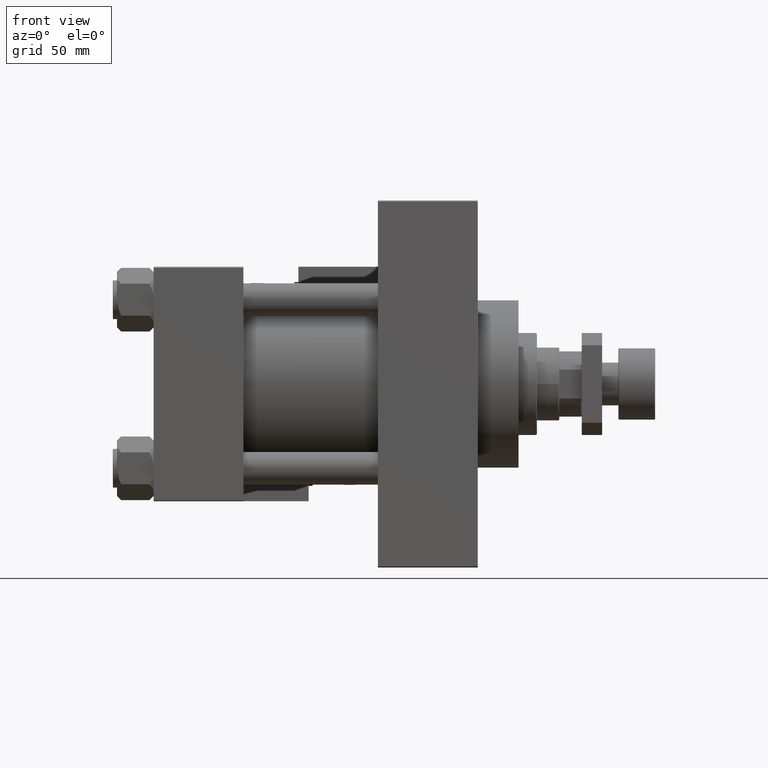
[diagram: clean part render]
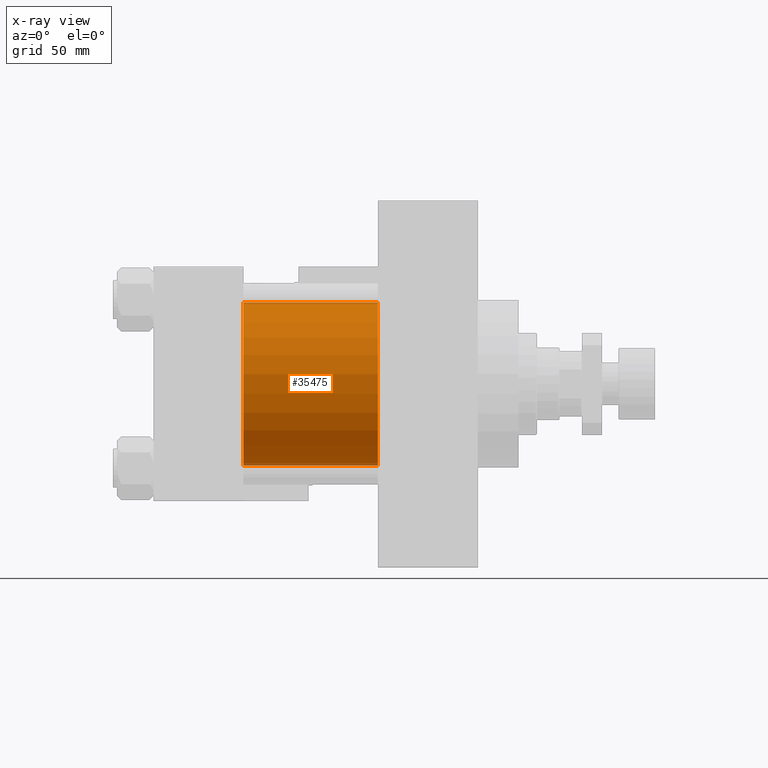
[diagram: x-ray — body ghosted, one internal face saturated and labeled with its STEP entity id]
A machine part, front view, then the same camera in x-ray: the body is ghosted and one INTERNAL B-rep face — a face not visible from any outside direction — is saturated and labeled: STEP entity #35475.
In plain terms, the highlighted cylindrical surface (partial cylindrical patch) has radius 40 mm, axis along (-1, -0, -0).
Its self-contained STEP definition (entity closure, byte-faithful):
#846 = DIRECTION ( 'NONE',  ( 0.000000000000000000, 0.000000000000000000, 1.000000000000000000 ) ) ;
#1658 = EDGE_CURVE ( 'NONE', #4494, #47241, #13878, .T. ) ;
#1798 = ORIENTED_EDGE ( 'NONE', *, *, #10836, .T. ) ;
#1974 = CIRCLE ( 'NONE', #12400, 40.00000000000000000 ) ;
#3302 = CARTESIAN_POINT ( 'NONE',  ( 110.0000000000000000, -2.602085213965210642E-15, 40.00000000000000000 ) ) ;
#3337 = DIRECTION ( 'NONE',  ( 1.000000000000000000, 0.000000000000000000, 0.000000000000000000 ) ) ;
#3361 = VERTEX_POINT ( 'NONE', #7809 ) ;
#4494 = VERTEX_POINT ( 'NONE', #8357 ) ;
#6855 = CARTESIAN_POINT ( 'NONE',  ( 44.00000000000000000, 2.296501982624201990E-15, -40.00000000000000000 ) ) ;
#7809 = CARTESIAN_POINT ( 'NONE',  ( 110.0000000000000000, -2.602085213965210642E-15, 40.00000000000000000 ) ) ;
#7813 = AXIS2_PLACEMENT_3D ( 'NONE', #53163, #3337, #19959 ) ;
#8357 = CARTESIAN_POINT ( 'NONE',  ( 44.00000000000000000, -2.602085213965210642E-15, 40.00000000000000000 ) ) ;
#8490 = DIRECTION ( 'NONE',  ( -1.000000000000000000, -0.000000000000000000, -0.000000000000000000 ) ) ;
#9816 = DIRECTION ( 'NONE',  ( 1.000000000000000000, 0.000000000000000000, 0.000000000000000000 ) ) ;
#10836 = EDGE_CURVE ( 'NONE', #3361, #37650, #1974, .T. ) ;
#12400 = AXIS2_PLACEMENT_3D ( 'NONE', #17735, #9816, #41955 ) ;
#13878 = CIRCLE ( 'NONE', #7813, 40.00000000000000000 ) ;
#16593 = EDGE_LOOP ( 'NONE', ( #1798, #50295, #43242, #24466 ) ) ;
#17735 = CARTESIAN_POINT ( 'NONE',  ( 110.0000000000000000, -2.602085213965210642E-15, 0.000000000000000000 ) ) ;
#19199 = CARTESIAN_POINT ( 'NONE',  ( 110.0000000000000000, 2.296501982624201990E-15, -40.00000000000000000 ) ) ;
#19959 = DIRECTION ( 'NONE',  ( 0.000000000000000000, 0.000000000000000000, -1.000000000000000000 ) ) ;
#24276 = DIRECTION ( 'NONE',  ( -1.000000000000000000, -0.000000000000000000, -0.000000000000000000 ) ) ;
#24466 = ORIENTED_EDGE ( 'NONE', *, *, #51586, .F. ) ;
#28519 = VECTOR ( 'NONE', #24276, 1000.000000000000000 ) ;
#31374 = AXIS2_PLACEMENT_3D ( 'NONE', #38141, #8490, #846 ) ;
#32323 = DIRECTION ( 'NONE',  ( -1.000000000000000000, -0.000000000000000000, -0.000000000000000000 ) ) ;
#35475 = ADVANCED_FACE ( 'NONE', ( #45788 ), #42223, .F. ) ;
#37650 = VERTEX_POINT ( 'NONE', #19199 ) ;
#38141 = CARTESIAN_POINT ( 'NONE',  ( 110.0000000000000000, -2.602085213965210642E-15, 0.000000000000000000 ) ) ;
#39945 = CARTESIAN_POINT ( 'NONE',  ( 110.0000000000000000, 2.296501982624201990E-15, -40.00000000000000000 ) ) ;
#41955 = DIRECTION ( 'NONE',  ( 0.000000000000000000, 0.000000000000000000, -1.000000000000000000 ) ) ;
#42223 = CYLINDRICAL_SURFACE ( 'NONE', #31374, 40.00000000000000000 ) ;
#43242 = ORIENTED_EDGE ( 'NONE', *, *, #1658, .F. ) ;
#43767 = LINE ( 'NONE', #39945, #44081 ) ;
#44081 = VECTOR ( 'NONE', #32323, 1000.000000000000000 ) ;
#44945 = LINE ( 'NONE', #3302, #28519 ) ;
#45788 = FACE_OUTER_BOUND ( 'NONE', #16593, .T. ) ;
#47241 = VERTEX_POINT ( 'NONE', #6855 ) ;
#48901 = EDGE_CURVE ( 'NONE', #37650, #47241, #43767, .T. ) ;
#50295 = ORIENTED_EDGE ( 'NONE', *, *, #48901, .T. ) ;
#51586 = EDGE_CURVE ( 'NONE', #3361, #4494, #44945, .T. ) ;
#53163 = CARTESIAN_POINT ( 'NONE',  ( 44.00000000000000000, -2.602085213965210642E-15, 0.000000000000000000 ) ) ;